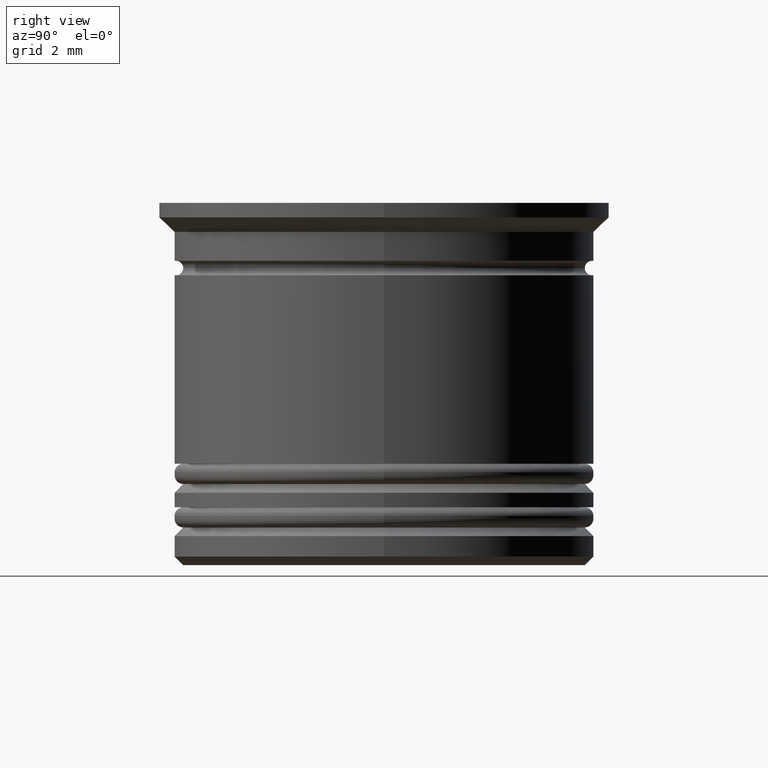
[diagram: clean part render]
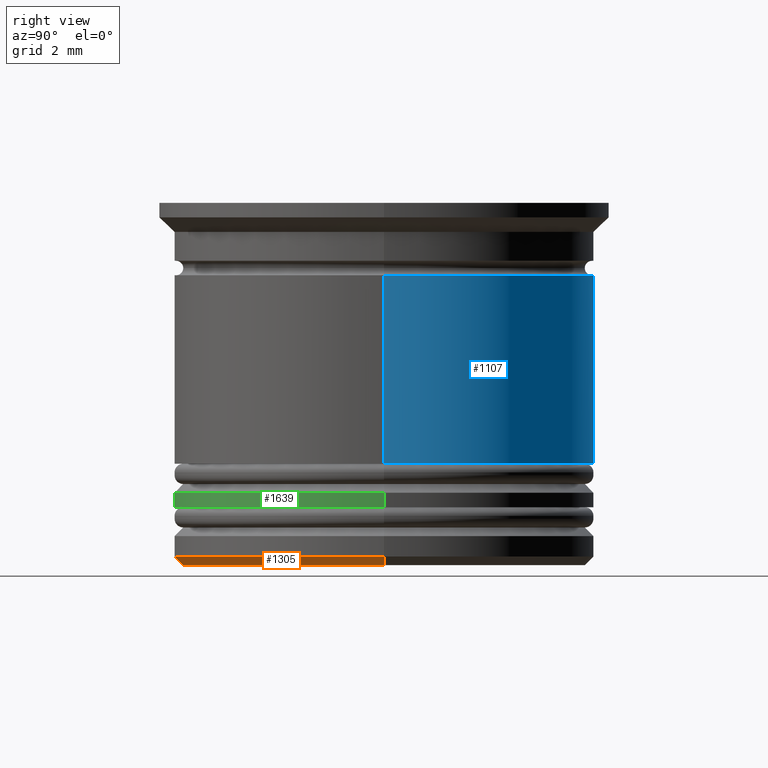
[diagram: same view with three faces highlighted in distinct colors, each labeled with its STEP entity id]
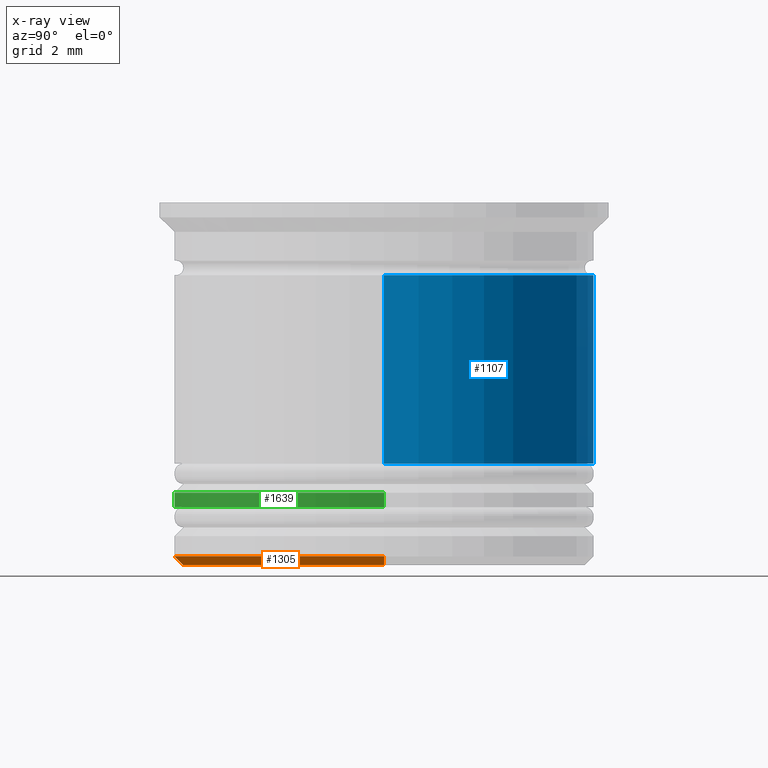
[diagram: x-ray of the same camera — body ghosted, the three highlighted faces saturated]
A machine part, right view with three faces highlighted in distinct colors.
The next image is the same camera in x-ray (body ghosted, the three faces saturated) — at least one of them is partly hidden behind the body in this view.
Their STEP definitions:

[orange] entity #1305 — the highlighted conical surface has half-angle 45 deg.
#64 = VECTOR ( 'NONE', #1849, 1000.000000000000114 ) ;
#70 = CARTESIAN_POINT ( 'NONE',  ( -7.250000000000000888, 8.878689293818312046E-16, -12.20000000000000639 ) ) ;
#94 = ORIENTED_EDGE ( 'NONE', *, *, #249, .T. ) ;
#149 = CARTESIAN_POINT ( 'NONE',  ( 7.250000000000000888, 0.000000000000000000, -12.20000000000000639 ) ) ;
#199 = VECTOR ( 'NONE', #933, 1000.000000000000114 ) ;
#221 = CARTESIAN_POINT ( 'NONE',  ( 6.950000000000003730, 0.000000000000000000, -12.50000000000000000 ) ) ;
#249 = EDGE_CURVE ( 'NONE', #1441, #743, #1982, .T. ) ;
#256 = LINE ( 'NONE', #868, #64 ) ;
#276 = CIRCLE ( 'NONE', #562, 7.250000000000000888 ) ;
#295 = DIRECTION ( 'NONE',  ( 0.000000000000000000, 0.000000000000000000, -1.000000000000000000 ) ) ;
#434 = CARTESIAN_POINT ( 'NONE',  ( -6.950000000000003730, 8.694992273946211691E-16, -12.50000000000000000 ) ) ;
#452 = ORIENTED_EDGE ( 'NONE', *, *, #929, .F. ) ;
#523 = EDGE_CURVE ( 'NONE', #1441, #1351, #1095, .T. ) ;
#530 = AXIS2_PLACEMENT_3D ( 'NONE', #1013, #853, #885 ) ;
#562 = AXIS2_PLACEMENT_3D ( 'NONE', #1558, #818, #1407 ) ;
#585 = DIRECTION ( 'NONE',  ( -1.000000000000000000, 0.000000000000000000, 0.000000000000000000 ) ) ;
#595 = EDGE_CURVE ( 'NONE', #1108, #743, #276, .T. ) ;
#725 = FACE_OUTER_BOUND ( 'NONE', #850, .T. ) ;
#729 = CONICAL_SURFACE ( 'NONE', #530, 7.250000000000000888, 0.7853981633974528309 ) ;
#743 = VERTEX_POINT ( 'NONE', #1089 ) ;
#818 = DIRECTION ( 'NONE',  ( -0.000000000000000000, -0.000000000000000000, 1.000000000000000000 ) ) ;
#850 = EDGE_LOOP ( 'NONE', ( #452, #1234, #94, #1748 ) ) ;
#853 = DIRECTION ( 'NONE',  ( -0.000000000000000000, -0.000000000000000000, 1.000000000000000000 ) ) ;
#868 = CARTESIAN_POINT ( 'NONE',  ( -7.250000000000000888, 8.878689293818312046E-16, -12.20000000000000639 ) ) ;
#885 = DIRECTION ( 'NONE',  ( 1.000000000000000000, 0.000000000000000000, 0.000000000000000000 ) ) ;
#929 = EDGE_CURVE ( 'NONE', #1351, #1108, #256, .T. ) ;
#933 = DIRECTION ( 'NONE',  ( 0.7071067811865506814, 0.000000000000000000, 0.7071067811865443531 ) ) ;
#1013 = CARTESIAN_POINT ( 'NONE',  ( 0.000000000000000000, 0.000000000000000000, -12.20000000000000639 ) ) ;
#1089 = CARTESIAN_POINT ( 'NONE',  ( 7.250000000000000888, 0.000000000000000000, -12.20000000000000639 ) ) ;
#1095 = CIRCLE ( 'NONE', #1500, 6.950000000000003730 ) ;
#1108 = VERTEX_POINT ( 'NONE', #70 ) ;
#1216 = CARTESIAN_POINT ( 'NONE',  ( 0.000000000000000000, 0.000000000000000000, -12.50000000000000000 ) ) ;
#1234 = ORIENTED_EDGE ( 'NONE', *, *, #523, .F. ) ;
#1305 = ADVANCED_FACE ( 'NONE', ( #725 ), #729, .T. ) ;
#1351 = VERTEX_POINT ( 'NONE', #434 ) ;
#1407 = DIRECTION ( 'NONE',  ( -1.000000000000000000, 0.000000000000000000, 0.000000000000000000 ) ) ;
#1441 = VERTEX_POINT ( 'NONE', #221 ) ;
#1500 = AXIS2_PLACEMENT_3D ( 'NONE', #1216, #295, #585 ) ;
#1558 = CARTESIAN_POINT ( 'NONE',  ( 0.000000000000000000, 0.000000000000000000, -12.20000000000000639 ) ) ;
#1748 = ORIENTED_EDGE ( 'NONE', *, *, #595, .F. ) ;
#1849 = DIRECTION ( 'NONE',  ( -0.7071067811865506814, 8.659560562354969836E-17, 0.7071067811865443531 ) ) ;
#1982 = LINE ( 'NONE', #149, #199 ) ;

[blue] entity #1107 — the highlighted cylindrical surface (partial cylindrical patch) has radius 7.25 mm, axis along (-0, -0, 1).
#78 = CARTESIAN_POINT ( 'NONE',  ( 0.000000000000000000, 0.000000000000000000, -9.000000000000001776 ) ) ;
#80 = CARTESIAN_POINT ( 'NONE',  ( 0.000000000000000000, 0.000000000000000000, -2.499999999999999556 ) ) ;
#97 = VERTEX_POINT ( 'NONE', #1023 ) ;
#109 = DIRECTION ( 'NONE',  ( -0.000000000000000000, -0.000000000000000000, 1.000000000000000000 ) ) ;
#117 = EDGE_LOOP ( 'NONE', ( #127, #382, #377, #1073 ) ) ;
#127 = ORIENTED_EDGE ( 'NONE', *, *, #625, .T. ) ;
#279 = VECTOR ( 'NONE', #1250, 1000.000000000000000 ) ;
#280 = DIRECTION ( 'NONE',  ( 1.000000000000000000, 0.000000000000000000, 0.000000000000000000 ) ) ;
#294 = EDGE_CURVE ( 'NONE', #534, #1567, #494, .T. ) ;
#324 = CARTESIAN_POINT ( 'NONE',  ( 7.249999999999999112, 0.000000000000000000, -2.499999999999999556 ) ) ;
#351 = EDGE_CURVE ( 'NONE', #1567, #511, #1161, .T. ) ;
#377 = ORIENTED_EDGE ( 'NONE', *, *, #351, .F. ) ;
#382 = ORIENTED_EDGE ( 'NONE', *, *, #796, .T. ) ;
#475 = DIRECTION ( 'NONE',  ( -0.000000000000000000, -0.000000000000000000, 1.000000000000000000 ) ) ;
#494 = LINE ( 'NONE', #1388, #618 ) ;
#511 = VERTEX_POINT ( 'NONE', #1954 ) ;
#534 = VERTEX_POINT ( 'NONE', #746 ) ;
#618 = VECTOR ( 'NONE', #475, 1000.000000000000000 ) ;
#625 = EDGE_CURVE ( 'NONE', #534, #97, #1217, .T. ) ;
#746 = CARTESIAN_POINT ( 'NONE',  ( 7.249999999999999112, 0.000000000000000000, -9.000000000000001776 ) ) ;
#796 = EDGE_CURVE ( 'NONE', #97, #511, #1684, .T. ) ;
#811 = AXIS2_PLACEMENT_3D ( 'NONE', #78, #1300, #1745 ) ;
#875 = CARTESIAN_POINT ( 'NONE',  ( 0.000000000000000000, 0.000000000000000000, 0.000000000000000000 ) ) ;
#954 = CARTESIAN_POINT ( 'NONE',  ( -7.249999999999999112, 8.878689293818310074E-16, 0.000000000000000000 ) ) ;
#973 = AXIS2_PLACEMENT_3D ( 'NONE', #80, #1243, #1869 ) ;
#1023 = CARTESIAN_POINT ( 'NONE',  ( -7.249999999999999112, 8.878689293818310074E-16, -9.000000000000001776 ) ) ;
#1025 = CYLINDRICAL_SURFACE ( 'NONE', #1315, 7.249999999999999112 ) ;
#1073 = ORIENTED_EDGE ( 'NONE', *, *, #294, .F. ) ;
#1107 = ADVANCED_FACE ( 'NONE', ( #1600 ), #1025, .T. ) ;
#1161 = CIRCLE ( 'NONE', #973, 7.249999999999999112 ) ;
#1217 = CIRCLE ( 'NONE', #811, 7.249999999999999112 ) ;
#1243 = DIRECTION ( 'NONE',  ( -0.000000000000000000, -0.000000000000000000, 1.000000000000000000 ) ) ;
#1250 = DIRECTION ( 'NONE',  ( -0.000000000000000000, -0.000000000000000000, 1.000000000000000000 ) ) ;
#1300 = DIRECTION ( 'NONE',  ( -0.000000000000000000, -0.000000000000000000, 1.000000000000000000 ) ) ;
#1315 = AXIS2_PLACEMENT_3D ( 'NONE', #875, #109, #280 ) ;
#1388 = CARTESIAN_POINT ( 'NONE',  ( 7.249999999999999112, 0.000000000000000000, 0.000000000000000000 ) ) ;
#1567 = VERTEX_POINT ( 'NONE', #324 ) ;
#1600 = FACE_OUTER_BOUND ( 'NONE', #117, .T. ) ;
#1684 = LINE ( 'NONE', #954, #279 ) ;
#1745 = DIRECTION ( 'NONE',  ( 1.000000000000000000, 0.000000000000000000, 0.000000000000000000 ) ) ;
#1869 = DIRECTION ( 'NONE',  ( 1.000000000000000000, 0.000000000000000000, 0.000000000000000000 ) ) ;
#1954 = CARTESIAN_POINT ( 'NONE',  ( -7.249999999999999112, 8.878689293818310074E-16, -2.499999999999999556 ) ) ;

[green] entity #1639 — the highlighted cylindrical surface (partial cylindrical patch) has radius 7.25 mm, axis along (-0, -0, 1).
#41 = CARTESIAN_POINT ( 'NONE',  ( 0.000000000000000000, 0.000000000000000000, -10.00000000000000355 ) ) ;
#152 = CARTESIAN_POINT ( 'NONE',  ( 0.000000000000000000, 0.000000000000000000, -10.49999999999999822 ) ) ;
#190 = DIRECTION ( 'NONE',  ( -0.000000000000000000, -0.000000000000000000, 1.000000000000000000 ) ) ;
#261 = EDGE_CURVE ( 'NONE', #1691, #808, #792, .T. ) ;
#304 = LINE ( 'NONE', #1502, #1063 ) ;
#314 = CIRCLE ( 'NONE', #1503, 7.249999999999999112 ) ;
#320 = DIRECTION ( 'NONE',  ( -0.000000000000000000, -0.000000000000000000, 1.000000000000000000 ) ) ;
#390 = ORIENTED_EDGE ( 'NONE', *, *, #261, .F. ) ;
#486 = CARTESIAN_POINT ( 'NONE',  ( 7.249999999999999112, 0.000000000000000000, -10.00000000000000355 ) ) ;
#487 = EDGE_CURVE ( 'NONE', #1876, #1231, #304, .T. ) ;
#501 = CIRCLE ( 'NONE', #1536, 7.250000000000000000 ) ;
#536 = EDGE_LOOP ( 'NONE', ( #390, #1332, #832, #633 ) ) ;
#597 = CYLINDRICAL_SURFACE ( 'NONE', #1337, 7.249999999999999112 ) ;
#633 = ORIENTED_EDGE ( 'NONE', *, *, #864, .T. ) ;
#773 = EDGE_CURVE ( 'NONE', #1691, #1876, #501, .T. ) ;
#792 = LINE ( 'NONE', #1064, #1528 ) ;
#808 = VERTEX_POINT ( 'NONE', #1832 ) ;
#832 = ORIENTED_EDGE ( 'NONE', *, *, #487, .T. ) ;
#864 = EDGE_CURVE ( 'NONE', #1231, #808, #314, .T. ) ;
#899 = CARTESIAN_POINT ( 'NONE',  ( 7.250000000000000000, 0.000000000000000000, -10.49999999999999822 ) ) ;
#1027 = FACE_OUTER_BOUND ( 'NONE', #536, .T. ) ;
#1063 = VECTOR ( 'NONE', #1655, 1000.000000000000000 ) ;
#1064 = CARTESIAN_POINT ( 'NONE',  ( -7.249999999999999112, 8.878689293818310074E-16, 0.000000000000000000 ) ) ;
#1100 = DIRECTION ( 'NONE',  ( 1.000000000000000000, 0.000000000000000000, 0.000000000000000000 ) ) ;
#1231 = VERTEX_POINT ( 'NONE', #486 ) ;
#1239 = DIRECTION ( 'NONE',  ( 1.000000000000000000, 0.000000000000000000, 0.000000000000000000 ) ) ;
#1266 = CARTESIAN_POINT ( 'NONE',  ( 0.000000000000000000, 0.000000000000000000, 0.000000000000000000 ) ) ;
#1267 = CARTESIAN_POINT ( 'NONE',  ( -7.250000000000000888, 8.878689293818312046E-16, -10.49999999999999822 ) ) ;
#1281 = DIRECTION ( 'NONE',  ( 1.000000000000000000, 0.000000000000000000, 0.000000000000000000 ) ) ;
#1332 = ORIENTED_EDGE ( 'NONE', *, *, #773, .T. ) ;
#1337 = AXIS2_PLACEMENT_3D ( 'NONE', #1266, #190, #1239 ) ;
#1502 = CARTESIAN_POINT ( 'NONE',  ( 7.249999999999999112, 0.000000000000000000, 0.000000000000000000 ) ) ;
#1503 = AXIS2_PLACEMENT_3D ( 'NONE', #41, #1585, #1281 ) ;
#1528 = VECTOR ( 'NONE', #320, 1000.000000000000000 ) ;
#1536 = AXIS2_PLACEMENT_3D ( 'NONE', #152, #1697, #1100 ) ;
#1585 = DIRECTION ( 'NONE',  ( 0.000000000000000000, 0.000000000000000000, -1.000000000000000000 ) ) ;
#1639 = ADVANCED_FACE ( 'NONE', ( #1027 ), #597, .T. ) ;
#1655 = DIRECTION ( 'NONE',  ( -0.000000000000000000, -0.000000000000000000, 1.000000000000000000 ) ) ;
#1691 = VERTEX_POINT ( 'NONE', #1267 ) ;
#1697 = DIRECTION ( 'NONE',  ( -0.000000000000000000, -0.000000000000000000, 1.000000000000000000 ) ) ;
#1832 = CARTESIAN_POINT ( 'NONE',  ( -7.249999999999999112, 8.878689293818310074E-16, -10.00000000000000355 ) ) ;
#1876 = VERTEX_POINT ( 'NONE', #899 ) ;